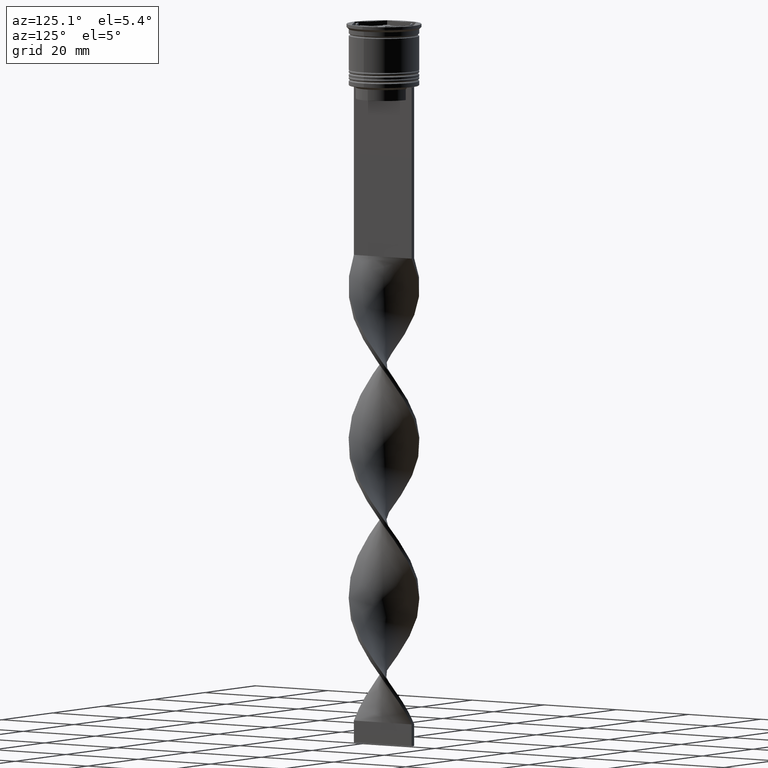
[diagram: clean part render]
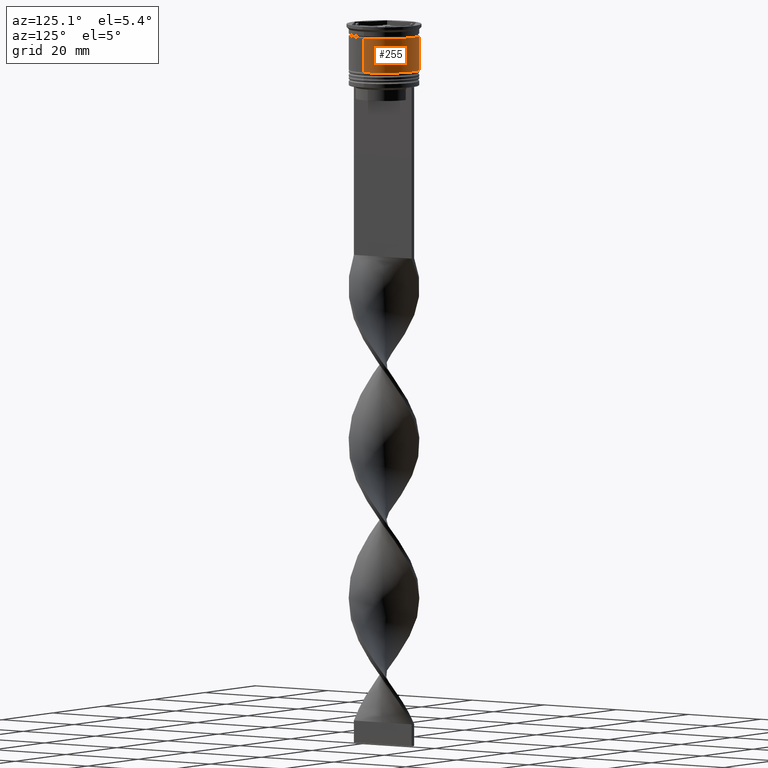
[diagram: same view with one face highlighted and labeled with its STEP entity id]
A machine part, auxiliary view. The second image highlights one B-rep face of the part: STEP entity #255.
In plain terms, the highlighted cylindrical surface (edge-blend (fillet) strip) has radius 8 mm, axis along (-0, -0, 1).
Its self-contained STEP definition (entity closure, byte-faithful):
#36 = LINE ( 'NONE', #2995, #2212 ) ;
#178 = LINE ( 'NONE', #2715, #2268 ) ;
#212 = VERTEX_POINT ( 'NONE', #1779 ) ;
#243 = EDGE_CURVE ( 'NONE', #3261, #709, #36, .T. ) ;
#255 = ADVANCED_FACE ( 'NONE', ( #3532 ), #3237, .T. ) ;
#340 = DIRECTION ( 'NONE',  ( -0.000000000000000000, -0.000000000000000000, 1.000000000000000000 ) ) ;
#461 = EDGE_LOOP ( 'NONE', ( #2408, #1956, #2478, #2295 ) ) ;
#550 = CARTESIAN_POINT ( 'NONE',  ( 8.000000000000001776, 0.000000000000000000, -10.50000000000000000 ) ) ;
#627 = CARTESIAN_POINT ( 'NONE',  ( 0.000000000000000000, 0.000000000000000000, 0.000000000000000000 ) ) ;
#671 = DIRECTION ( 'NONE',  ( -0.000000000000000000, -0.000000000000000000, 1.000000000000000000 ) ) ;
#709 = VERTEX_POINT ( 'NONE', #3140 ) ;
#822 = CARTESIAN_POINT ( 'NONE',  ( 0.000000000000000000, 0.000000000000000000, -10.50000000000000000 ) ) ;
#931 = AXIS2_PLACEMENT_3D ( 'NONE', #822, #1963, #1431 ) ;
#1174 = CIRCLE ( 'NONE', #931, 8.000000000000001776 ) ;
#1362 = AXIS2_PLACEMENT_3D ( 'NONE', #2731, #671, #2427 ) ;
#1417 = CARTESIAN_POINT ( 'NONE',  ( -7.999999999999998224, 9.797174393178823685E-16, -2.700000000000001510 ) ) ;
#1431 = DIRECTION ( 'NONE',  ( 1.000000000000000000, 0.000000000000000000, 0.000000000000000000 ) ) ;
#1462 = EDGE_CURVE ( 'NONE', #212, #2668, #178, .T. ) ;
#1548 = AXIS2_PLACEMENT_3D ( 'NONE', #627, #340, #3033 ) ;
#1609 = EDGE_CURVE ( 'NONE', #3261, #212, #1174, .T. ) ;
#1779 = CARTESIAN_POINT ( 'NONE',  ( -8.000000000000001776, 9.797174393178827630E-16, -10.50000000000000000 ) ) ;
#1956 = ORIENTED_EDGE ( 'NONE', *, *, #1462, .T. ) ;
#1963 = DIRECTION ( 'NONE',  ( -0.000000000000000000, -0.000000000000000000, 1.000000000000000000 ) ) ;
#2212 = VECTOR ( 'NONE', #2364, 1000.000000000000000 ) ;
#2268 = VECTOR ( 'NONE', #3590, 1000.000000000000000 ) ;
#2295 = ORIENTED_EDGE ( 'NONE', *, *, #243, .F. ) ;
#2364 = DIRECTION ( 'NONE',  ( -0.000000000000000000, -0.000000000000000000, 1.000000000000000000 ) ) ;
#2408 = ORIENTED_EDGE ( 'NONE', *, *, #1609, .T. ) ;
#2427 = DIRECTION ( 'NONE',  ( 1.000000000000000000, 0.000000000000000000, 0.000000000000000000 ) ) ;
#2478 = ORIENTED_EDGE ( 'NONE', *, *, #2790, .F. ) ;
#2668 = VERTEX_POINT ( 'NONE', #1417 ) ;
#2715 = CARTESIAN_POINT ( 'NONE',  ( -8.000000000000000000, 9.797174393178825657E-16, 0.000000000000000000 ) ) ;
#2731 = CARTESIAN_POINT ( 'NONE',  ( 0.000000000000000000, 0.000000000000000000, -2.700000000000001510 ) ) ;
#2790 = EDGE_CURVE ( 'NONE', #709, #2668, #3498, .T. ) ;
#2995 = CARTESIAN_POINT ( 'NONE',  ( 8.000000000000000000, 0.000000000000000000, 0.000000000000000000 ) ) ;
#3033 = DIRECTION ( 'NONE',  ( 1.000000000000000000, 0.000000000000000000, 0.000000000000000000 ) ) ;
#3140 = CARTESIAN_POINT ( 'NONE',  ( 7.999999999999998224, 0.000000000000000000, -2.700000000000001510 ) ) ;
#3237 = CYLINDRICAL_SURFACE ( 'NONE', #1548, 8.000000000000000000 ) ;
#3261 = VERTEX_POINT ( 'NONE', #550 ) ;
#3498 = CIRCLE ( 'NONE', #1362, 7.999999999999998224 ) ;
#3532 = FACE_OUTER_BOUND ( 'NONE', #461, .T. ) ;
#3590 = DIRECTION ( 'NONE',  ( -0.000000000000000000, -0.000000000000000000, 1.000000000000000000 ) ) ;